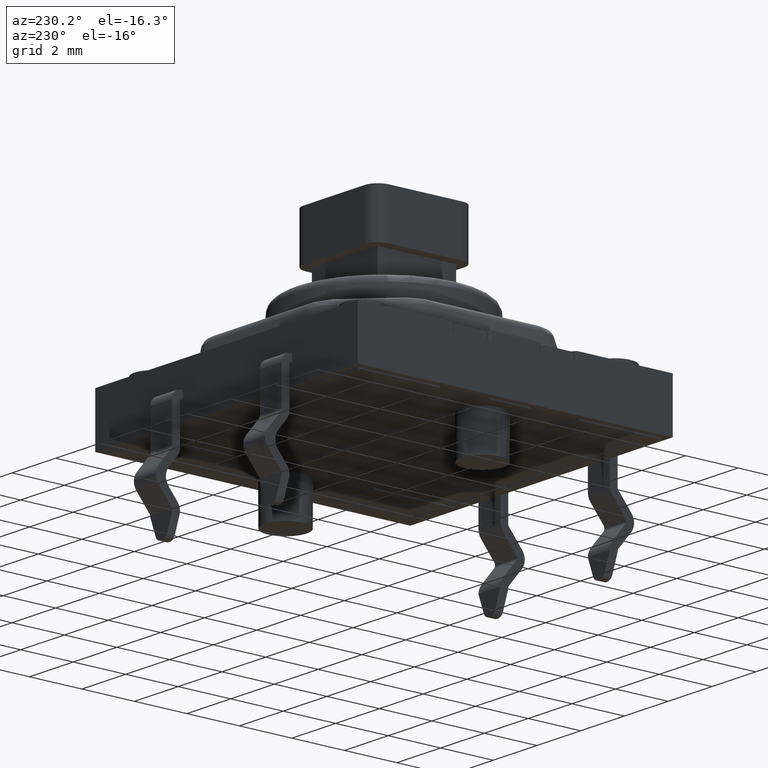
[diagram: clean part render]
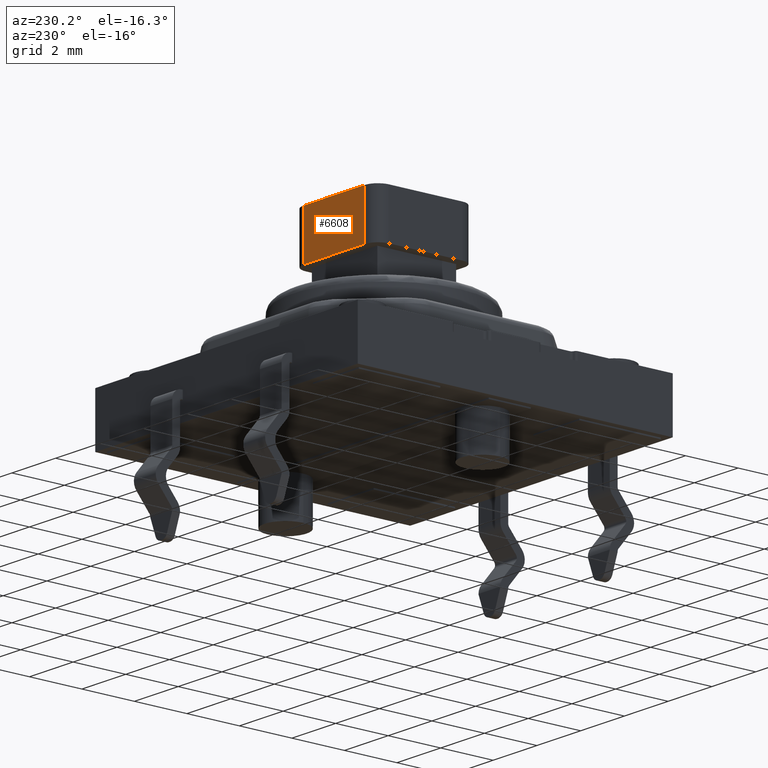
[diagram: same view with one face highlighted and labeled with its STEP entity id]
A machine part, auxiliary view. The second image highlights one B-rep face of the part: STEP entity #6608.
In plain terms, the highlighted planar face has unit normal (-0, 1, -0).
Its self-contained STEP definition (entity closure, byte-faithful):
#380=PLANE('',#7276);
#699=FACE_OUTER_BOUND('',#1133,.T.);
#1133=EDGE_LOOP('',(#5667,#5668,#5669,#5670));
#1708=LINE('',#11454,#2237);
#1713=LINE('',#11467,#2242);
#1714=LINE('',#11470,#2243);
#1715=LINE('',#11471,#2244);
#2237=VECTOR('',#9014,0.393700787401575);
#2242=VECTOR('',#9025,0.393700787401575);
#2243=VECTOR('',#9028,0.393700787401575);
#2244=VECTOR('',#9029,0.393700787401575);
#3111=VERTEX_POINT('',#11451);
#3112=VERTEX_POINT('',#11453);
#3117=VERTEX_POINT('',#11465);
#3118=VERTEX_POINT('',#11469);
#3977=EDGE_CURVE('',#3111,#3112,#1708,.T.);
#3984=EDGE_CURVE('',#3112,#3117,#1713,.T.);
#3985=EDGE_CURVE('',#3118,#3111,#1714,.T.);
#3986=EDGE_CURVE('',#3117,#3118,#1715,.T.);
#5667=ORIENTED_EDGE('',*,*,#3984,.F.);
#5668=ORIENTED_EDGE('',*,*,#3977,.F.);
#5669=ORIENTED_EDGE('',*,*,#3985,.F.);
#5670=ORIENTED_EDGE('',*,*,#3986,.F.);
#6608=ADVANCED_FACE('',(#699),#380,.T.);
#7276=AXIS2_PLACEMENT_3D('',#11468,#9026,#9027);
#9014=DIRECTION('',(1.,5.55111512312579E-17,1.23259516440783E-32));
#9025=DIRECTION('',(-1.84889274661175E-32,1.11022302462516E-16,1.));
#9026=DIRECTION('center_axis',(-5.55111512312579E-17,1.,-1.11022302462516E-16));
#9027=DIRECTION('ref_axis',(-1.,-5.55111512312579E-17,-1.23259516440783E-32));
#9028=DIRECTION('',(1.84889274661175E-32,-1.11022302462516E-16,-1.));
#9029=DIRECTION('',(-1.,-5.55111512312579E-17,-1.23259516440783E-32));
#11451=CARTESIAN_POINT('',(-0.254581199739346,-0.120229246522462,0.280799733181959));
#11453=CARTESIAN_POINT('',(-0.144344979266905,-0.120229246522462,0.280799733181959));
#11454=CARTESIAN_POINT('',(-0.274266239109425,-0.120229246522462,0.280799733181959));
#11465=CARTESIAN_POINT('',(-0.144344979266905,-0.120229246522462,0.351665874914242));
#11467=CARTESIAN_POINT('',(-0.144344979266905,-0.120229246522462,0.280799733181959));
#11468=CARTESIAN_POINT('Origin',(-0.124659939896827,-0.120229246522462,
0.280799733181959));
#11469=CARTESIAN_POINT('',(-0.254581199739346,-0.120229246522462,0.351665874914242));
#11470=CARTESIAN_POINT('',(-0.254581199739346,-0.120229246522462,0.280799733181959));
#11471=CARTESIAN_POINT('',(-0.274266239109425,-0.120229246522462,0.351665874914242));